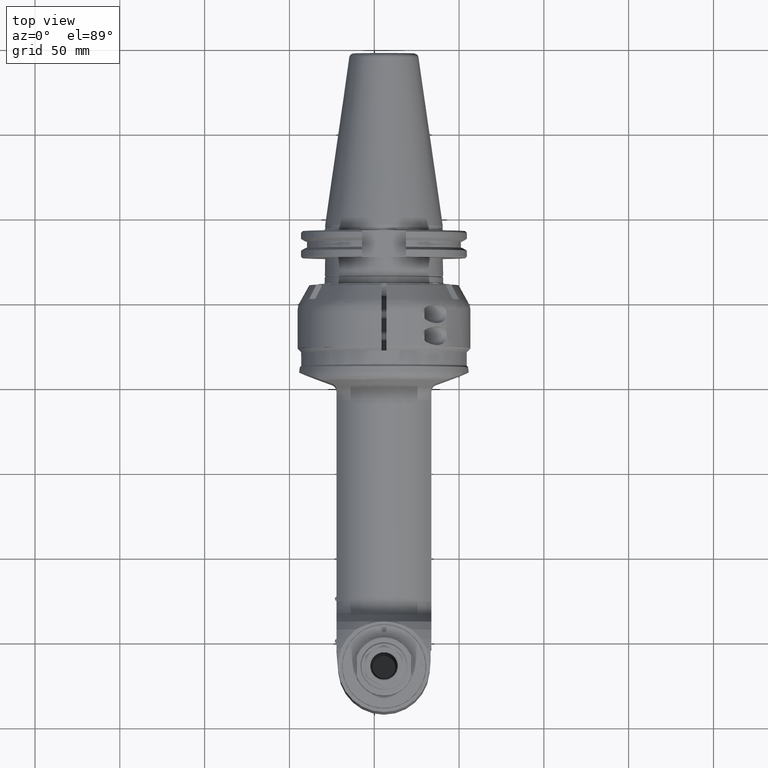
[diagram: clean part render]
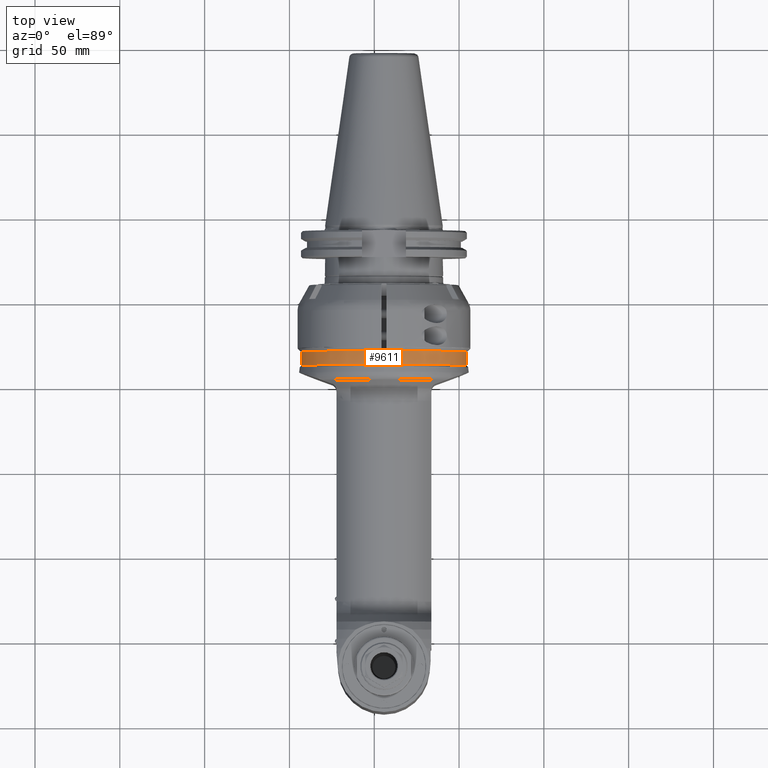
[diagram: same view with one face highlighted and labeled with its STEP entity id]
A machine part, top view. The second image highlights one B-rep face of the part: STEP entity #9611.
In plain terms, the highlighted cylindrical surface (bore or boss wall) has radius 49 mm, axis along (0, -1, -0).
Its self-contained STEP definition (entity closure, byte-faithful):
#616=CYLINDRICAL_SURFACE('',#10385,49.);
#815=CIRCLE('',#10383,49.);
#816=CIRCLE('',#10384,49.);
#817=CIRCLE('',#10386,49.);
#1373=FACE_OUTER_BOUND('',#1973,.T.);
#1973=EDGE_LOOP('',(#6619,#6620,#6621,#6622,#6623));
#2650=LINE('',#15250,#3309);
#3309=VECTOR('',#11722,49.);
#4045=VERTEX_POINT('',#15243);
#4046=VERTEX_POINT('',#15245);
#4047=VERTEX_POINT('',#15249);
#5044=EDGE_CURVE('',#4045,#4046,#815,.T.);
#5045=EDGE_CURVE('',#4046,#4045,#816,.T.);
#5046=EDGE_CURVE('',#4046,#4047,#2650,.T.);
#5047=EDGE_CURVE('',#4047,#4047,#817,.T.);
#6619=ORIENTED_EDGE('',*,*,#5045,.F.);
#6620=ORIENTED_EDGE('',*,*,#5046,.T.);
#6621=ORIENTED_EDGE('',*,*,#5047,.F.);
#6622=ORIENTED_EDGE('',*,*,#5046,.F.);
#6623=ORIENTED_EDGE('',*,*,#5044,.F.);
#9611=ADVANCED_FACE('',(#1373),#616,.T.);
#10383=AXIS2_PLACEMENT_3D('',#15246,#11716,#11717);
#10384=AXIS2_PLACEMENT_3D('',#15247,#11718,#11719);
#10385=AXIS2_PLACEMENT_3D('',#15248,#11720,#11721);
#10386=AXIS2_PLACEMENT_3D('',#15251,#11723,#11724);
#11716=DIRECTION('center_axis',(1.,0.,0.));
#11717=DIRECTION('ref_axis',(0.,-1.,0.));
#11718=DIRECTION('center_axis',(1.,0.,0.));
#11719=DIRECTION('ref_axis',(0.,-1.,0.));
#11720=DIRECTION('center_axis',(1.,0.,0.));
#11721=DIRECTION('ref_axis',(0.,0.0871557427476639,-0.996194698091745));
#11722=DIRECTION('',(-1.,0.,0.));
#11723=DIRECTION('center_axis',(-1.,0.,0.));
#11724=DIRECTION('ref_axis',(0.,-0.0871557427476639,0.996194698091745));
#15243=CARTESIAN_POINT('',(12.,49.,6.00076931582203E-15));
#15245=CARTESIAN_POINT('',(12.,-4.270631394635,48.8135402065));
#15246=CARTESIAN_POINT('Origin',(12.,0.,0.));
#15247=CARTESIAN_POINT('Origin',(12.,0.,0.));
#15248=CARTESIAN_POINT('Origin',(8.1,0.,0.));
#15249=CARTESIAN_POINT('',(4.000000000002,-4.270631394635,48.8135402065));
#15250=CARTESIAN_POINT('',(8.1,-4.27063139463554,48.8135402064955));
#15251=CARTESIAN_POINT('Origin',(4.000000000002,0.,0.));